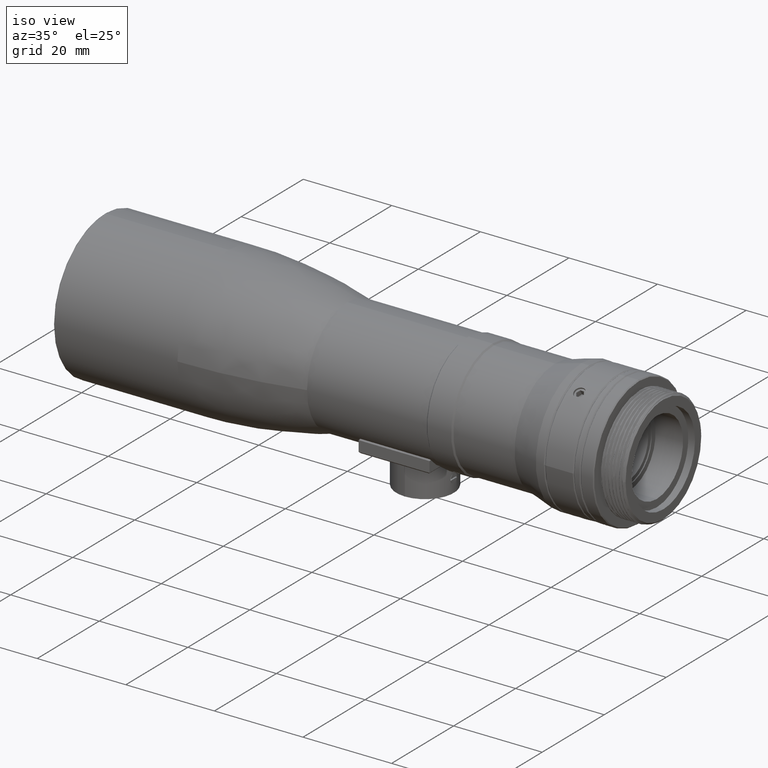
[diagram: clean part render]
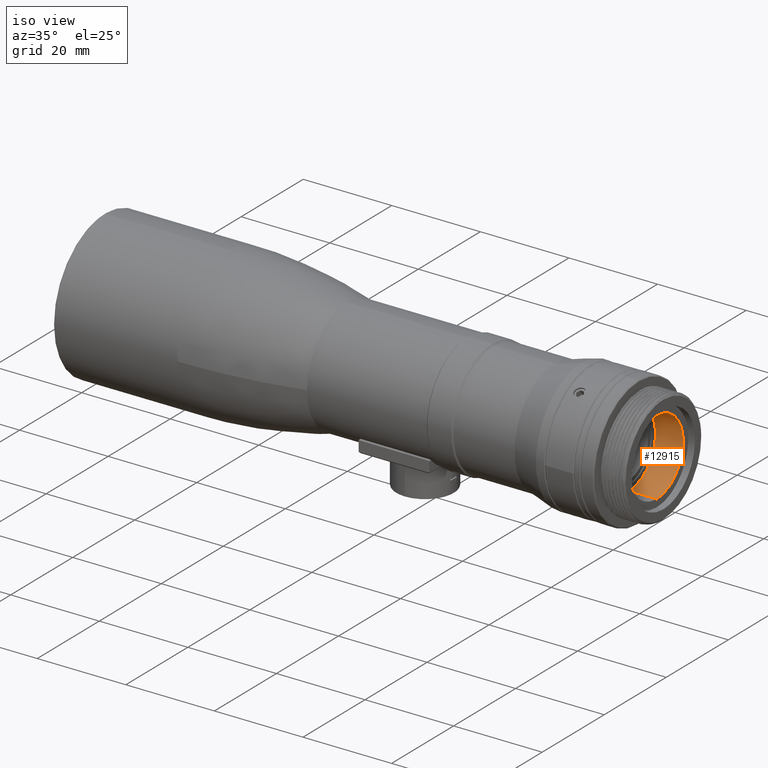
[diagram: same view with one face highlighted and labeled with its STEP entity id]
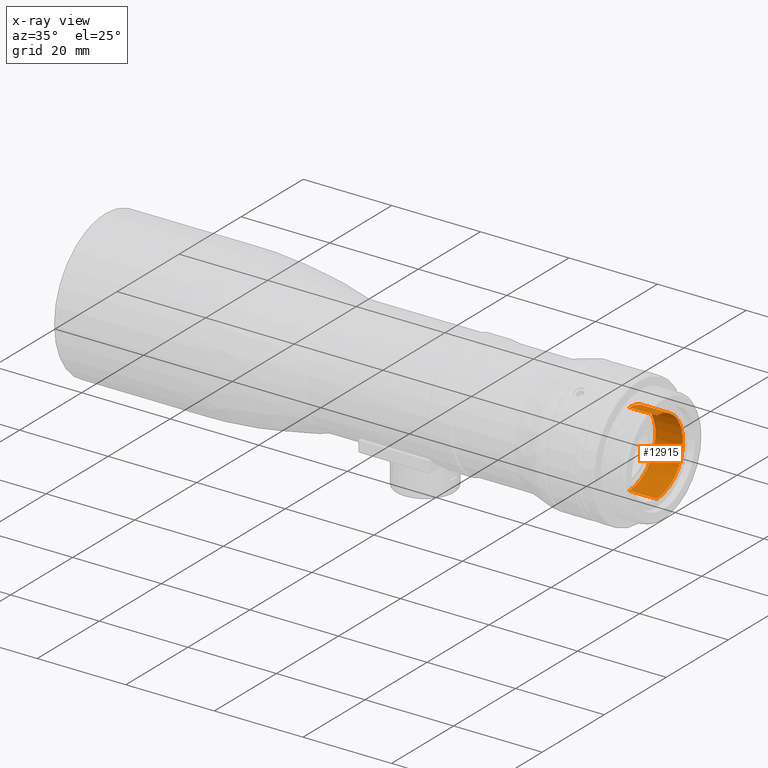
[diagram: x-ray of the same camera — body ghosted, the highlighted face saturated]
A machine part, iso view. The second image highlights one B-rep face of the part: STEP entity #12915.
The next image is the same camera in x-ray: the body ghosted, the highlighted face saturated — about 0% of this face is hidden behind the body in this view.
In plain terms, the highlighted cylindrical surface (partial cylindrical patch) has radius 8.5 mm, axis along (-1, 0, 0).
Its self-contained STEP definition (entity closure, byte-faithful):
#1280 = EDGE_CURVE ( 'NONE', #31306, #20142, #3997, .T. ) ;
#2635 = VECTOR ( 'NONE', #23912, 1000.000000000000000 ) ;
#3960 = EDGE_CURVE ( 'NONE', #31306, #4135, #27393, .T. ) ;
#3988 = AXIS2_PLACEMENT_3D ( 'NONE', #27322, #7586, #10030 ) ;
#3997 = LINE ( 'NONE', #10852, #2635 ) ;
#4135 = VERTEX_POINT ( 'NONE', #25588 ) ;
#4958 = CARTESIAN_POINT ( 'NONE',  ( 63.61500000000000199, 0.000000000000000000, 8.500000000000000000 ) ) ;
#5280 = DIRECTION ( 'NONE',  ( -1.000000000000000000, 0.000000000000000000, 0.000000000000000000 ) ) ;
#5393 = CARTESIAN_POINT ( 'NONE',  ( 63.61500000000000199, 1.040949779275249943E-15, -8.500000000000000000 ) ) ;
#7559 = CARTESIAN_POINT ( 'NONE',  ( 69.84999999999999432, 0.000000000000000000, 8.500000000000000000 ) ) ;
#7586 = DIRECTION ( 'NONE',  ( 1.000000000000000000, 0.000000000000000000, 0.000000000000000000 ) ) ;
#10030 = DIRECTION ( 'NONE',  ( 0.000000000000000000, 0.000000000000000000, 1.000000000000000000 ) ) ;
#10205 = CARTESIAN_POINT ( 'NONE',  ( 69.84999999999999432, 0.000000000000000000, 0.000000000000000000 ) ) ;
#10320 = DIRECTION ( 'NONE',  ( -1.000000000000000000, 0.000000000000000000, 0.000000000000000000 ) ) ;
#10765 = CARTESIAN_POINT ( 'NONE',  ( 69.84999999999999432, 1.040949779275249943E-15, -8.500000000000000000 ) ) ;
#10852 = CARTESIAN_POINT ( 'NONE',  ( 69.84999999999999432, 1.040949779275249943E-15, -8.500000000000000000 ) ) ;
#12554 = ORIENTED_EDGE ( 'NONE', *, *, #30886, .T. ) ;
#12915 = ADVANCED_FACE ( 'NONE', ( #27657 ), #18190, .F. ) ;
#17497 = AXIS2_PLACEMENT_3D ( 'NONE', #27400, #19582, #19413 ) ;
#18190 = CYLINDRICAL_SURFACE ( 'NONE', #30029, 8.500000000000000000 ) ;
#19413 = DIRECTION ( 'NONE',  ( 0.000000000000000000, 0.000000000000000000, 1.000000000000000000 ) ) ;
#19582 = DIRECTION ( 'NONE',  ( 1.000000000000000000, 0.000000000000000000, 0.000000000000000000 ) ) ;
#19801 = LINE ( 'NONE', #7559, #19830 ) ;
#19830 = VECTOR ( 'NONE', #10320, 1000.000000000000000 ) ;
#20142 = VERTEX_POINT ( 'NONE', #5393 ) ;
#21179 = CIRCLE ( 'NONE', #3988, 8.500000000000000000 ) ;
#21285 = ORIENTED_EDGE ( 'NONE', *, *, #24332, .F. ) ;
#21775 = ORIENTED_EDGE ( 'NONE', *, *, #3960, .T. ) ;
#23912 = DIRECTION ( 'NONE',  ( -1.000000000000000000, 0.000000000000000000, 0.000000000000000000 ) ) ;
#24332 = EDGE_CURVE ( 'NONE', #20142, #27990, #21179, .T. ) ;
#25368 = DIRECTION ( 'NONE',  ( 0.000000000000000000, 0.000000000000000000, 1.000000000000000000 ) ) ;
#25588 = CARTESIAN_POINT ( 'NONE',  ( 69.84999999999999432, 0.000000000000000000, 8.500000000000000000 ) ) ;
#27322 = CARTESIAN_POINT ( 'NONE',  ( 63.61500000000000199, 0.000000000000000000, 0.000000000000000000 ) ) ;
#27393 = CIRCLE ( 'NONE', #17497, 8.500000000000000000 ) ;
#27400 = CARTESIAN_POINT ( 'NONE',  ( 69.84999999999999432, 0.000000000000000000, 0.000000000000000000 ) ) ;
#27657 = FACE_OUTER_BOUND ( 'NONE', #27972, .T. ) ;
#27972 = EDGE_LOOP ( 'NONE', ( #29064, #21775, #12554, #21285 ) ) ;
#27990 = VERTEX_POINT ( 'NONE', #4958 ) ;
#29064 = ORIENTED_EDGE ( 'NONE', *, *, #1280, .F. ) ;
#30029 = AXIS2_PLACEMENT_3D ( 'NONE', #10205, #5280, #25368 ) ;
#30886 = EDGE_CURVE ( 'NONE', #4135, #27990, #19801, .T. ) ;
#31306 = VERTEX_POINT ( 'NONE', #10765 ) ;